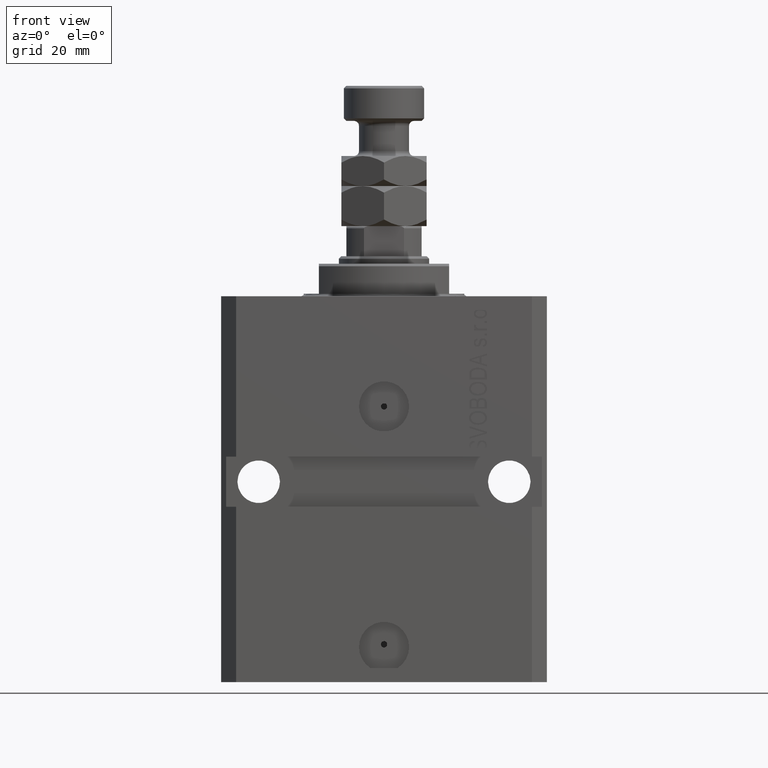
[diagram: clean part render]
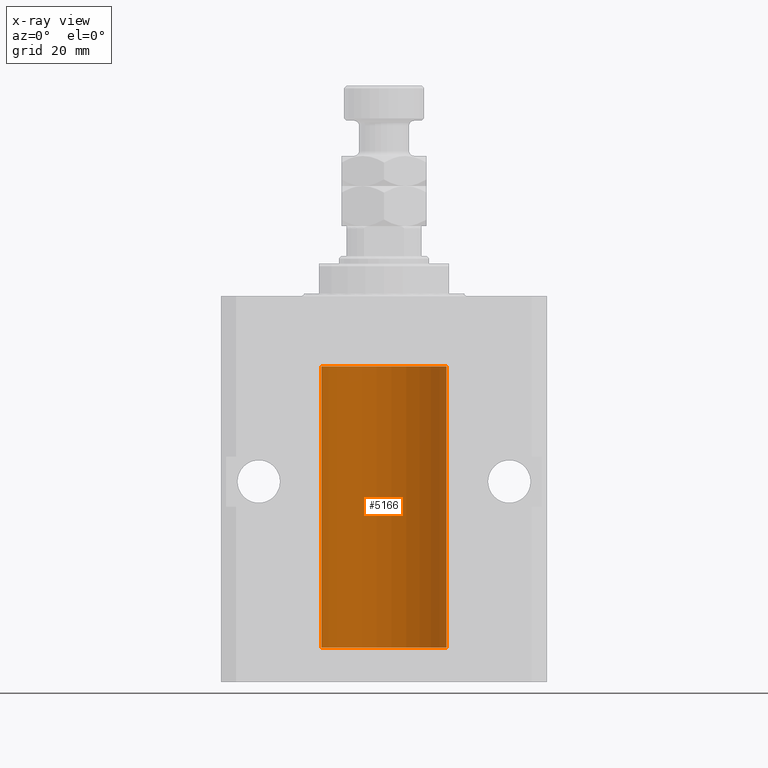
[diagram: x-ray — body ghosted, one internal face saturated and labeled with its STEP entity id]
A machine part, front view, then the same camera in x-ray: the body is ghosted and one INTERNAL B-rep face — a face not visible from any outside direction — is saturated and labeled: STEP entity #5166.
In plain terms, the highlighted cylindrical surface (partial cylindrical patch) has radius 12.5 mm, axis along (0, 0, 1).
Its self-contained STEP definition (entity closure, byte-faithful):
#89 = CARTESIAN_POINT ( 'NONE',  ( -12.50000000000000000, -2.089494013101375120E-17, -21.37499999999999645 ) ) ;
#822 = CARTESIAN_POINT ( 'NONE',  ( 12.50000000000000000, 0.000000000000000000, -70.09999999999999432 ) ) ;
#1136 = CARTESIAN_POINT ( 'NONE',  ( 12.49915742890631876, 0.1636982395582408101, -22.60872397847025894 ) ) ;
#1275 = ORIENTED_EDGE ( 'NONE', *, *, #33595, .T. ) ;
#1327 = CARTESIAN_POINT ( 'NONE',  ( -12.49625855304193500, 0.3150454781038046770, -64.45402800297485157 ) ) ;
#1454 = ORIENTED_EDGE ( 'NONE', *, *, #7474, .F. ) ;
#1650 = CARTESIAN_POINT ( 'NONE',  ( 12.48520578595314845, 0.6087855079133740466, -64.83656717509344958 ) ) ;
#1858 = VECTOR ( 'NONE', #29237, 1000.000000000000000 ) ;
#3123 = DIRECTION ( 'NONE',  ( 0.000000000000000000, 0.000000000000000000, 1.000000000000000000 ) ) ;
#3499 = DIRECTION ( 'NONE',  ( -0.000000000000000000, -0.000000000000000000, 1.000000000000000000 ) ) ;
#3503 = CARTESIAN_POINT ( 'NONE',  ( -12.49631005746706336, 0.3253680783018528255, -22.55856740465392463 ) ) ;
#3753 = VERTEX_POINT ( 'NONE', #41453 ) ;
#3763 = ORIENTED_EDGE ( 'NONE', *, *, #39716, .F. ) ;
#3947 = ORIENTED_EDGE ( 'NONE', *, *, #39076, .T. ) ;
#4318 = VERTEX_POINT ( 'NONE', #8053 ) ;
#4339 = CARTESIAN_POINT ( 'NONE',  ( -12.50000000000017941, 3.883381646606358354E-13, -22.62500000000358824 ) ) ;
#4401 = CARTESIAN_POINT ( 'NONE',  ( 12.50000000000000178, 0.08262306818362646910, -22.62499999999997158 ) ) ;
#5166 = ADVANCED_FACE ( 'NONE', ( #18386 ), #6882, .F. ) ;
#5329 = CARTESIAN_POINT ( 'NONE',  ( -12.50000000000017941, 3.883381774819353300E-13, -65.62500000000359535 ) ) ;
#5400 = CARTESIAN_POINT ( 'NONE',  ( 12.48810305280568222, 0.5461368461738485003, -64.68525466142676805 ) ) ;
#5658 = EDGE_CURVE ( 'NONE', #42595, #32332, #19819, .T. ) ;
#5809 = CARTESIAN_POINT ( 'NONE',  ( -12.49631005746706514, 0.3253680783018499389, -65.55856740465391397 ) ) ;
#5861 = DIRECTION ( 'NONE',  ( 1.000000000000000000, 0.000000000000000000, 0.000000000000000000 ) ) ;
#6002 = CARTESIAN_POINT ( 'NONE',  ( 12.48436522214846711, 0.6250000000078848039, -64.99999999999923261 ) ) ;
#6011 = VERTEX_POINT ( 'NONE', #47523 ) ;
#6882 = CYLINDRICAL_SURFACE ( 'NONE', #33250, 12.50000000000000000 ) ;
#7003 = CARTESIAN_POINT ( 'NONE',  ( -12.49999999999999289, 0.1631761135151241215, -22.62499999999984013 ) ) ;
#7021 = CARTESIAN_POINT ( 'NONE',  ( 12.50000000000017941, 3.868073565084946818E-13, -21.37499999999641176 ) ) ;
#7471 = CARTESIAN_POINT ( 'NONE',  ( 12.50000000000000000, 0.000000000000000000, -70.09999999999999432 ) ) ;
#7474 = EDGE_CURVE ( 'NONE', #4318, #3753, #45690, .T. ) ;
#7493 = CARTESIAN_POINT ( 'NONE',  ( -12.50000000000017941, 3.883381646606358354E-13, -22.62500000000358824 ) ) ;
#8011 = VERTEX_POINT ( 'NONE', #33127 ) ;
#8053 = CARTESIAN_POINT ( 'NONE',  ( -12.50000000000000000, 1.530808498934191521E-15, -70.09999999999999432 ) ) ;
#8358 = AXIS2_PLACEMENT_3D ( 'NONE', #28348, #9366, #5861 ) ;
#8389 = CARTESIAN_POINT ( 'NONE',  ( 12.48436522214846889, 0.6250000000078781426, -21.99999999999923261 ) ) ;
#8714 = CARTESIAN_POINT ( 'NONE',  ( 12.50000000000000000, 0.000000000000000000, -70.09999999999999432 ) ) ;
#8752 = B_SPLINE_CURVE_WITH_KNOTS ( 'NONE', 3,
 ( #24340, #32323, #35575, #39816, #20596, #47522, #43796, #16846 ),
 .UNSPECIFIED., .F., .F.,
 ( 4, 2, 2, 4 ),
 ( 1.784246692340212412E-18, 0.0002443481056285665750, 0.0004886962112571313068, 0.0009773924225142606621 ),
 .UNSPECIFIED. ) ;
#8896 = CARTESIAN_POINT ( 'NONE',  ( 12.48436522214846711, 0.6250000000078848039, -64.99999999999923261 ) ) ;
#9230 = DIRECTION ( 'NONE',  ( -0.000000000000000000, -0.000000000000000000, 1.000000000000000000 ) ) ;
#9366 = DIRECTION ( 'NONE',  ( 0.000000000000000000, 0.000000000000000000, 1.000000000000000000 ) ) ;
#9528 = LINE ( 'NONE', #28270, #1858 ) ;
#10347 = CARTESIAN_POINT ( 'NONE',  ( -12.50000000000000000, 1.530808498934191521E-15, -13.99999999999999822 ) ) ;
#11015 = CARTESIAN_POINT ( 'NONE',  ( -12.49915784441386890, 0.1636601911727947889, -21.39126818989430490 ) ) ;
#11034 = CARTESIAN_POINT ( 'NONE',  ( 12.48810305280568222, 0.5461368461738450586, -21.68525466142676805 ) ) ;
#11134 = CARTESIAN_POINT ( 'NONE',  ( 12.50000000000017941, 3.868073565084946818E-13, -21.37499999999641176 ) ) ;
#11237 = LINE ( 'NONE', #7471, #39096 ) ;
#12285 = VERTEX_POINT ( 'NONE', #29640 ) ;
#12726 = ORIENTED_EDGE ( 'NONE', *, *, #15403, .F. ) ;
#12810 = VERTEX_POINT ( 'NONE', #6002 ) ;
#13796 = CARTESIAN_POINT ( 'NONE',  ( -12.48436813453758809, 0.6249418250771181516, -64.83668996798922990 ) ) ;
#14040 = CARTESIAN_POINT ( 'NONE',  ( 12.48436522214846889, 0.6250000000078781426, -21.99999999999923261 ) ) ;
#14290 = VERTEX_POINT ( 'NONE', #4339 ) ;
#15107 = CARTESIAN_POINT ( 'NONE',  ( 12.50000000000000000, -1.836039810331332019E-15, -65.62500000000000000 ) ) ;
#15403 = EDGE_CURVE ( 'NONE', #42595, #4318, #45804, .T. ) ;
#15512 = CIRCLE ( 'NONE', #21897, 12.50000000000000000 ) ;
#15893 = CARTESIAN_POINT ( 'NONE',  ( 12.49625698805481200, 0.3151108292486943241, -22.54593695688172161 ) ) ;
#16061 = DIRECTION ( 'NONE',  ( -0.000000000000000000, -0.000000000000000000, 1.000000000000000000 ) ) ;
#16446 = VERTEX_POINT ( 'NONE', #89 ) ;
#16810 = B_SPLINE_CURVE_WITH_KNOTS ( 'NONE', 3,
 ( #14040, #29519, #29758, #11034, #22034, #44736, #44253, #7021 ),
 .UNSPECIFIED., .F., .F.,
 ( 4, 2, 2, 4 ),
 ( 0.0009773924225142526390, 0.001221629287363798890, 0.001465866152213344924, 0.001954339881912444798 ),
 .UNSPECIFIED. ) ;
#16846 = CARTESIAN_POINT ( 'NONE',  ( 12.48436522214846711, 0.6250000000078848039, -64.99999999999923261 ) ) ;
#17296 = CARTESIAN_POINT ( 'NONE',  ( -12.49999999999999645, 0.08260426088728485550, -64.37499999999998579 ) ) ;
#18386 = FACE_OUTER_BOUND ( 'NONE', #40695, .T. ) ;
#18790 = B_SPLINE_CURVE_WITH_KNOTS ( 'NONE', 3,
 ( #8896, #35622, #1650, #5400, #31884, #47567, #31388, #27881 ),
 .UNSPECIFIED., .F., .F.,
 ( 4, 2, 2, 4 ),
 ( 0.0009773924225142606621, 0.001221629287363811033, 0.001465866152213361404, 0.001954339881912461711 ),
 .UNSPECIFIED. ) ;
#19249 = CARTESIAN_POINT ( 'NONE',  ( -12.48436813453758454, 0.6249418250771192618, -21.83668996798922635 ) ) ;
#19280 = VERTEX_POINT ( 'NONE', #24332 ) ;
#19560 = B_SPLINE_CURVE_WITH_KNOTS ( 'NONE', 3,
 ( #23391, #4401, #1136, #15893, #22880, #27372, #42613, #8389 ),
 .UNSPECIFIED., .F., .F.,
 ( 4, 2, 2, 4 ),
 ( 5.872716678082737689E-20, 0.0002443481056285632140, 0.0004886962112571263195, 0.0009773924225142526390 ),
 .UNSPECIFIED. ) ;
#19819 = LINE ( 'NONE', #822, #42979 ) ;
#20135 = EDGE_CURVE ( 'NONE', #12810, #6011, #18790, .T. ) ;
#20596 = CARTESIAN_POINT ( 'NONE',  ( 12.49421963472024721, 0.3844519291903572555, -65.49947303647046226 ) ) ;
#21501 = ORIENTED_EDGE ( 'NONE', *, *, #28261, .T. ) ;
#21897 = AXIS2_PLACEMENT_3D ( 'NONE', #37352, #3123, #45064 ) ;
#22034 = CARTESIAN_POINT ( 'NONE',  ( 12.49012055744648997, 0.5002956126655978553, -21.61641710202404454 ) ) ;
#22255 = CARTESIAN_POINT ( 'NONE',  ( -12.49422197749724006, 0.3843754434364375916, -21.50047099568095277 ) ) ;
#22530 = VECTOR ( 'NONE', #24908, 1000.000000000000000 ) ;
#22744 = CARTESIAN_POINT ( 'NONE',  ( -12.50000000000000000, 1.530808498934191521E-15, -70.09999999999999432 ) ) ;
#22880 = CARTESIAN_POINT ( 'NONE',  ( 12.49421963472024721, 0.3844519291903548686, -22.49947303647045871 ) ) ;
#23391 = CARTESIAN_POINT ( 'NONE',  ( 12.50000000000000000, -6.043189914290669986E-17, -22.62500000000000000 ) ) ;
#24315 = CARTESIAN_POINT ( 'NONE',  ( -12.48520330846398174, 0.6088355886774118320, -65.16325431852561678 ) ) ;
#24332 = CARTESIAN_POINT ( 'NONE',  ( 12.50000000000000000, -6.043189914290669986E-17, -22.62500000000000000 ) ) ;
#24340 = CARTESIAN_POINT ( 'NONE',  ( 12.50000000000000000, -1.836039810331332019E-15, -65.62500000000000000 ) ) ;
#24908 = DIRECTION ( 'NONE',  ( -0.000000000000000000, -0.000000000000000000, 1.000000000000000000 ) ) ;
#26242 = CARTESIAN_POINT ( 'NONE',  ( -12.49625855304193678, 0.3150454781038042329, -21.45402800297484802 ) ) ;
#26362 = DIRECTION ( 'NONE',  ( 1.000000000000000000, 0.000000000000000000, 0.000000000000000000 ) ) ;
#26477 = CARTESIAN_POINT ( 'NONE',  ( -12.50000000000000000, -2.089494013101375120E-17, -21.37499999999999645 ) ) ;
#26685 = ORIENTED_EDGE ( 'NONE', *, *, #44539, .T. ) ;
#26979 = LINE ( 'NONE', #42222, #43358 ) ;
#27171 = EDGE_CURVE ( 'NONE', #19280, #8011, #19560, .T. ) ;
#27372 = CARTESIAN_POINT ( 'NONE',  ( 12.48809900631782099, 0.5573988467445616379, -22.32640147935473962 ) ) ;
#27407 = VERTEX_POINT ( 'NONE', #10347 ) ;
#27730 = ORIENTED_EDGE ( 'NONE', *, *, #38229, .T. ) ;
#27881 = CARTESIAN_POINT ( 'NONE',  ( 12.50000000000017941, 3.868073689162038701E-13, -64.37499999999640465 ) ) ;
#27928 = VERTEX_POINT ( 'NONE', #11134 ) ;
#28261 = EDGE_CURVE ( 'NONE', #32332, #12810, #8752, .T. ) ;
#28270 = CARTESIAN_POINT ( 'NONE',  ( 12.50000000000000000, 0.000000000000000000, -70.09999999999999432 ) ) ;
#28299 = CARTESIAN_POINT ( 'NONE',  ( -12.48436376893640265, 0.6250290278979918623, -65.08132082824472775 ) ) ;
#28348 = CARTESIAN_POINT ( 'NONE',  ( 0.000000000000000000, 0.000000000000000000, -70.09999999999999432 ) ) ;
#28446 = ORIENTED_EDGE ( 'NONE', *, *, #27171, .T. ) ;
#29237 = DIRECTION ( 'NONE',  ( -0.000000000000000000, -0.000000000000000000, 1.000000000000000000 ) ) ;
#29271 = ORIENTED_EDGE ( 'NONE', *, *, #5658, .T. ) ;
#29455 = B_SPLINE_CURVE_WITH_KNOTS ( 'NONE', 3,
 ( #26477, #48938, #11015, #26242, #22255, #30480, #19249, #33488, #41468, #30740, #45951, #3503, #7003, #7493 ),
 .UNSPECIFIED., .F., .F.,
 ( 4, 2, 2, 2, 2, 2, 4 ),
 ( 2.030551168097110502E-20, 0.0002442924852390969078, 0.0004885849704781938157, 0.0009771699409563880650, 0.001221462426195485135, 0.001465754911434582423, 0.001954339881912776130 ),
 .UNSPECIFIED. ) ;
#29519 = CARTESIAN_POINT ( 'NONE',  ( 12.48436522214888100, 0.6249999999996767031, -21.91847339462351130 ) ) ;
#29640 = CARTESIAN_POINT ( 'NONE',  ( 12.50000000000000000, 0.000000000000000000, -13.99999999999999822 ) ) ;
#29758 = CARTESIAN_POINT ( 'NONE',  ( 12.48520578595314845, 0.6087855079133686065, -21.83656717509346024 ) ) ;
#30480 = CARTESIAN_POINT ( 'NONE',  ( -12.48810268015257563, 0.5573155909661349217, -21.67347410093867666 ) ) ;
#30740 = CARTESIAN_POINT ( 'NONE',  ( -12.48809959379011403, 0.5462151254764975317, -22.31461370481611795 ) ) ;
#30990 = ORIENTED_EDGE ( 'NONE', *, *, #40535, .T. ) ;
#31388 = CARTESIAN_POINT ( 'NONE',  ( 12.49999999999999822, 0.1631389616600901760, -64.37500000000022737 ) ) ;
#31884 = CARTESIAN_POINT ( 'NONE',  ( 12.49012055744648997, 0.5002956126656082914, -64.61641710202404454 ) ) ;
#32323 = CARTESIAN_POINT ( 'NONE',  ( 12.49999999999999822, 0.08262306818362624705, -65.62500000000000000 ) ) ;
#32332 = VERTEX_POINT ( 'NONE', #15107 ) ;
#32778 = CARTESIAN_POINT ( 'NONE',  ( -12.49999999999999822, 0.1631761135151225950, -65.62499999999985789 ) ) ;
#33127 = CARTESIAN_POINT ( 'NONE',  ( 12.48436522214846889, 0.6250000000078781426, -21.99999999999923261 ) ) ;
#33250 = AXIS2_PLACEMENT_3D ( 'NONE', #34094, #45568, #26362 ) ;
#33252 = ORIENTED_EDGE ( 'NONE', *, *, #44791, .F. ) ;
#33488 = CARTESIAN_POINT ( 'NONE',  ( -12.48436376893640443, 0.6250290278979917513, -22.08132082824473486 ) ) ;
#33595 = EDGE_CURVE ( 'NONE', #27928, #12285, #11237, .T. ) ;
#34094 = CARTESIAN_POINT ( 'NONE',  ( 0.000000000000000000, 0.000000000000000000, -70.09999999999999432 ) ) ;
#34462 = ORIENTED_EDGE ( 'NONE', *, *, #20135, .T. ) ;
#35575 = CARTESIAN_POINT ( 'NONE',  ( 12.49915742890631876, 0.1636982395582385896, -65.60872397847025184 ) ) ;
#35622 = CARTESIAN_POINT ( 'NONE',  ( 12.48436522214888100, 0.6249999999996834754, -64.91847339462351840 ) ) ;
#36043 = CARTESIAN_POINT ( 'NONE',  ( -12.49011732893843885, 0.5003763274120245352, -65.38348111289289477 ) ) ;
#36528 = CARTESIAN_POINT ( 'NONE',  ( -12.49915784441386890, 0.1636601911727943726, -64.39126818989430490 ) ) ;
#36650 = CARTESIAN_POINT ( 'NONE',  ( -12.50000000000000000, 1.530808498934191521E-15, -70.09999999999999432 ) ) ;
#37352 = CARTESIAN_POINT ( 'NONE',  ( 0.000000000000000000, 0.000000000000000000, -13.99999999999999822 ) ) ;
#37695 = VECTOR ( 'NONE', #3499, 1000.000000000000000 ) ;
#37957 = DIRECTION ( 'NONE',  ( -0.000000000000000000, -0.000000000000000000, 1.000000000000000000 ) ) ;
#38229 = EDGE_CURVE ( 'NONE', #39530, #3753, #47910, .T. ) ;
#38620 = ORIENTED_EDGE ( 'NONE', *, *, #46942, .T. ) ;
#39076 = EDGE_CURVE ( 'NONE', #16446, #14290, #29455, .T. ) ;
#39096 = VECTOR ( 'NONE', #37957, 1000.000000000000000 ) ;
#39530 = VERTEX_POINT ( 'NONE', #45455 ) ;
#39543 = CARTESIAN_POINT ( 'NONE',  ( -12.50000000000000000, -1.053276923642966949E-14, -64.37500000000000000 ) ) ;
#39666 = LINE ( 'NONE', #36650, #22530 ) ;
#39716 = EDGE_CURVE ( 'NONE', #16446, #27407, #39666, .T. ) ;
#39816 = CARTESIAN_POINT ( 'NONE',  ( 12.49625698805481022, 0.3151108292486944906, -65.54593695688173227 ) ) ;
#40535 = EDGE_CURVE ( 'NONE', #8011, #27928, #16810, .T. ) ;
#40695 = EDGE_LOOP ( 'NONE', ( #1454, #12726, #29271, #21501, #34462, #26685, #28446, #30990, #1275, #38620, #3763, #3947, #33252, #27730 ) ) ;
#41453 = CARTESIAN_POINT ( 'NONE',  ( -12.50000000000017941, 3.883381774819353300E-13, -65.62500000000359535 ) ) ;
#41468 = CARTESIAN_POINT ( 'NONE',  ( -12.48520330846397819, 0.6088355886774127201, -22.16325431852561323 ) ) ;
#42222 = CARTESIAN_POINT ( 'NONE',  ( -12.50000000000000000, 1.530808498934191521E-15, -70.09999999999999432 ) ) ;
#42595 = VERTEX_POINT ( 'NONE', #8714 ) ;
#42613 = CARTESIAN_POINT ( 'NONE',  ( 12.48436522214885080, 0.6250000000001435518, -22.16312747540306560 ) ) ;
#42979 = VECTOR ( 'NONE', #16061, 1000.000000000000000 ) ;
#43358 = VECTOR ( 'NONE', #9230, 1000.000000000000000 ) ;
#43773 = CARTESIAN_POINT ( 'NONE',  ( -12.48809959379011580, 0.5462151254764966435, -65.31461370481613926 ) ) ;
#43796 = CARTESIAN_POINT ( 'NONE',  ( 12.48436522214885969, 0.6250000000001505462, -65.16312747540307271 ) ) ;
#44253 = CARTESIAN_POINT ( 'NONE',  ( 12.49999999999999112, 0.1631389616600886772, -21.37500000000019185 ) ) ;
#44539 = EDGE_CURVE ( 'NONE', #6011, #19280, #9528, .T. ) ;
#44736 = CARTESIAN_POINT ( 'NONE',  ( 12.49631206032075958, 0.3252904079142805438, -21.44139700214925526 ) ) ;
#44791 = EDGE_CURVE ( 'NONE', #39530, #14290, #26979, .T. ) ;
#45064 = DIRECTION ( 'NONE',  ( 1.000000000000000000, 0.000000000000000000, 0.000000000000000000 ) ) ;
#45455 = CARTESIAN_POINT ( 'NONE',  ( -12.50000000000000000, -1.053276923642966949E-14, -64.37500000000000000 ) ) ;
#45568 = DIRECTION ( 'NONE',  ( -0.000000000000000000, -0.000000000000000000, 1.000000000000000000 ) ) ;
#45690 = LINE ( 'NONE', #22744, #37695 ) ;
#45804 = CIRCLE ( 'NONE', #8358, 12.50000000000000000 ) ;
#45951 = CARTESIAN_POINT ( 'NONE',  ( -12.49011732893843529, 0.5003763274120274218, -22.38348111289287701 ) ) ;
#46942 = EDGE_CURVE ( 'NONE', #12285, #27407, #15512, .T. ) ;
#47254 = CARTESIAN_POINT ( 'NONE',  ( -12.49422197749724361, 0.3843754434364307082, -64.50047099568097053 ) ) ;
#47522 = CARTESIAN_POINT ( 'NONE',  ( 12.48809900631782099, 0.5573988467445673001, -65.32640147935475738 ) ) ;
#47523 = CARTESIAN_POINT ( 'NONE',  ( 12.50000000000017941, 3.868073689162038701E-13, -64.37499999999640465 ) ) ;
#47567 = CARTESIAN_POINT ( 'NONE',  ( 12.49631206032076136, 0.3252904079142934779, -64.44139700214927302 ) ) ;
#47910 = B_SPLINE_CURVE_WITH_KNOTS ( 'NONE', 3,
 ( #39543, #17296, #36528, #1327, #47254, #47972, #13796, #28299, #24315, #43773, #36043, #5809, #32778, #5329 ),
 .UNSPECIFIED., .F., .F.,
 ( 4, 2, 2, 2, 2, 2, 4 ),
 ( 3.492495172846855184E-18, 0.0002442924852390798859, 0.0004885849704781563023, 0.0009771699409563386254, 0.001221462426195450658, 0.001465754911434562473, 0.001954339881912786538 ),
 .UNSPECIFIED. ) ;
#47972 = CARTESIAN_POINT ( 'NONE',  ( -12.48810268015257741, 0.5573155909661293705, -64.67347410093867666 ) ) ;
#48938 = CARTESIAN_POINT ( 'NONE',  ( -12.50000000000000000, 0.08260426088729219685, -21.37500000000000000 ) ) ;